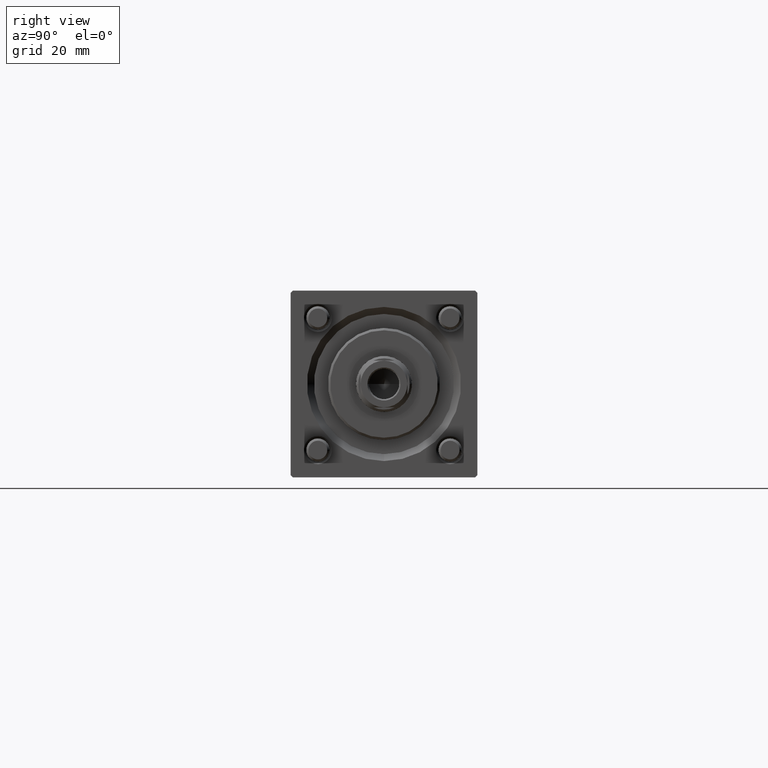
[diagram: clean part render]
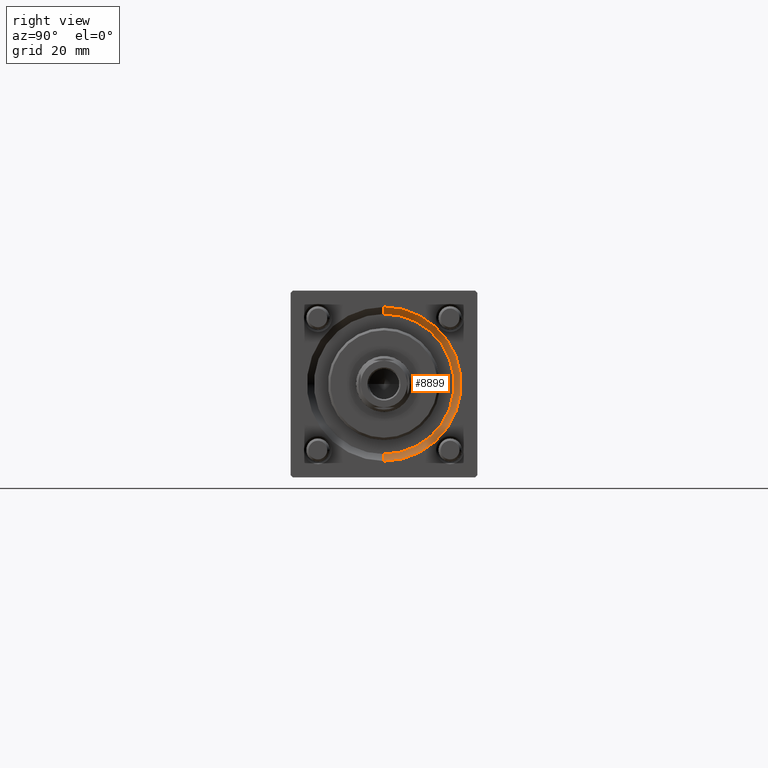
[diagram: same view with one face highlighted and labeled with its STEP entity id]
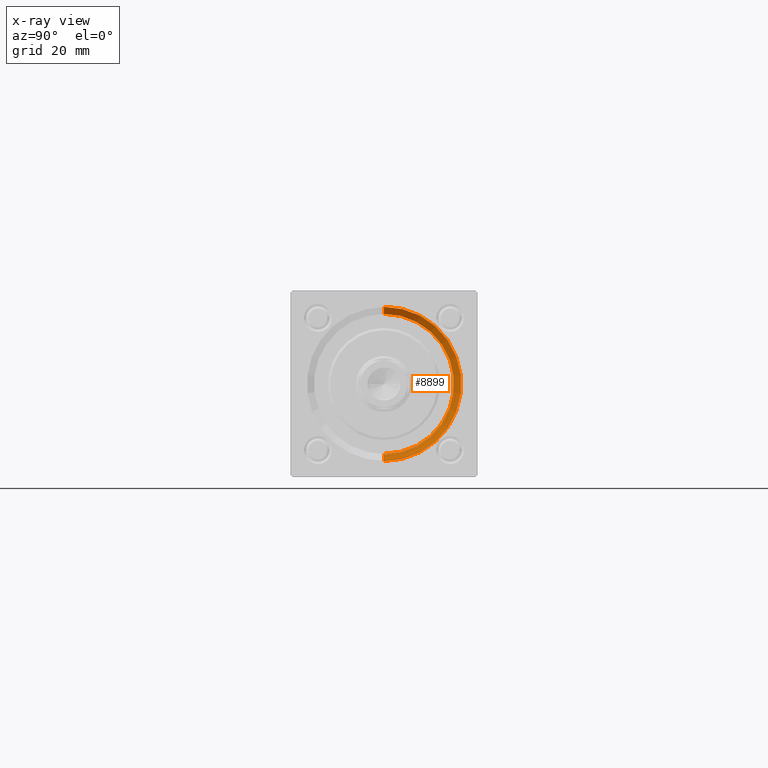
[diagram: x-ray of the same camera — body ghosted, the highlighted face saturated]
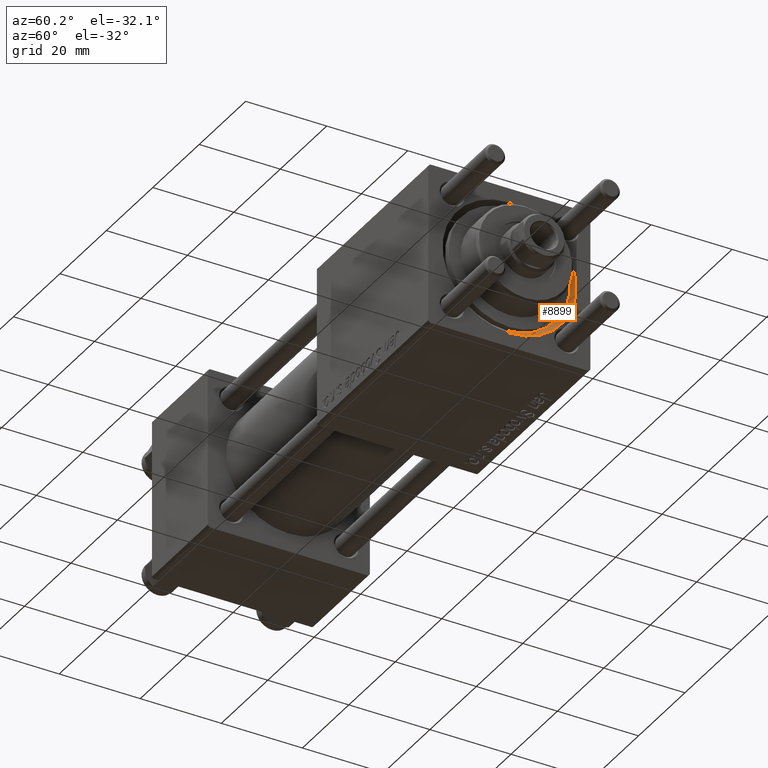
[diagram: same view with one face highlighted and labeled with its STEP entity id]
A machine part, right view. The second image highlights one B-rep face of the part: STEP entity #8899.
The next image is the same camera in x-ray: the body ghosted, the highlighted face saturated — about 0% of this face is hidden behind the body in this view.
A second angle (auxiliary view) of the same face is appended — the face is thin or edge-on in the first view.
In plain terms, the highlighted conical surface has half-angle 45 deg.
Its self-contained STEP definition (entity closure, byte-faithful):
#1649 = LINE ( 'NONE', #27236, #18999 ) ;
#2224 = ORIENTED_EDGE ( 'NONE', *, *, #39945, .F. ) ;
#4305 = ORIENTED_EDGE ( 'NONE', *, *, #38924, .T. ) ;
#5156 = AXIS2_PLACEMENT_3D ( 'NONE', #53191, #44582, #13909 ) ;
#6523 = VERTEX_POINT ( 'NONE', #56428 ) ;
#8899 = ADVANCED_FACE ( 'NONE', ( #55938 ), #10190, .F. ) ;
#10190 = CONICAL_SURFACE ( 'NONE', #43187, 15.00000000000000000, 0.7853981633974482790 ) ;
#11997 = DIRECTION ( 'NONE',  ( 0.000000000000000000, 0.000000000000000000, 1.000000000000000000 ) ) ;
#13749 = CARTESIAN_POINT ( 'NONE',  ( 119.0000000000000142, 0.000000000000000000, -16.50000000000001421 ) ) ;
#13909 = DIRECTION ( 'NONE',  ( 0.000000000000000000, 0.000000000000000000, 1.000000000000000000 ) ) ;
#15449 = DIRECTION ( 'NONE',  ( 1.000000000000000000, 0.000000000000000000, 0.000000000000000000 ) ) ;
#15726 = CARTESIAN_POINT ( 'NONE',  ( 117.5000000000000000, 0.000000000000000000, 0.000000000000000000 ) ) ;
#16059 = DIRECTION ( 'NONE',  ( 0.000000000000000000, 0.000000000000000000, -1.000000000000000000 ) ) ;
#18560 = VERTEX_POINT ( 'NONE', #40614 ) ;
#18612 = DIRECTION ( 'NONE',  ( 0.7071067811865474617, 0.000000000000000000, -0.7071067811865474617 ) ) ;
#18999 = VECTOR ( 'NONE', #18612, 1000.000000000000114 ) ;
#19041 = AXIS2_PLACEMENT_3D ( 'NONE', #15726, #15449, #11997 ) ;
#25469 = LINE ( 'NONE', #30884, #56777 ) ;
#26026 = DIRECTION ( 'NONE',  ( 0.7071067811865474617, 8.659560562354932858E-17, 0.7071067811865474617 ) ) ;
#26377 = CIRCLE ( 'NONE', #19041, 15.00000000000000000 ) ;
#27236 = CARTESIAN_POINT ( 'NONE',  ( 117.5000000000000000, 0.000000000000000000, -15.00000000000000000 ) ) ;
#30271 = VERTEX_POINT ( 'NONE', #47061 ) ;
#30884 = CARTESIAN_POINT ( 'NONE',  ( 117.5000000000000000, 1.836970198721029589E-15, 15.00000000000000000 ) ) ;
#35852 = EDGE_CURVE ( 'NONE', #30271, #49490, #41796, .T. ) ;
#37867 = CARTESIAN_POINT ( 'NONE',  ( 117.5000000000000000, 0.000000000000000000, 0.000000000000000000 ) ) ;
#38924 = EDGE_CURVE ( 'NONE', #18560, #49490, #1649, .T. ) ;
#39945 = EDGE_CURVE ( 'NONE', #18560, #6523, #26377, .T. ) ;
#40614 = CARTESIAN_POINT ( 'NONE',  ( 117.5000000000000000, 0.000000000000000000, -15.00000000000000000 ) ) ;
#41796 = CIRCLE ( 'NONE', #5156, 16.50000000000001421 ) ;
#43187 = AXIS2_PLACEMENT_3D ( 'NONE', #37867, #55363, #16059 ) ;
#44582 = DIRECTION ( 'NONE',  ( -1.000000000000000000, -0.000000000000000000, -0.000000000000000000 ) ) ;
#46962 = EDGE_LOOP ( 'NONE', ( #56294, #2224, #4305, #53105 ) ) ;
#47061 = CARTESIAN_POINT ( 'NONE',  ( 119.0000000000000142, 2.020667218593134678E-15, 16.50000000000001421 ) ) ;
#47927 = EDGE_CURVE ( 'NONE', #6523, #30271, #25469, .T. ) ;
#49490 = VERTEX_POINT ( 'NONE', #13749 ) ;
#53105 = ORIENTED_EDGE ( 'NONE', *, *, #35852, .F. ) ;
#53191 = CARTESIAN_POINT ( 'NONE',  ( 119.0000000000000142, 0.000000000000000000, 0.000000000000000000 ) ) ;
#55363 = DIRECTION ( 'NONE',  ( 1.000000000000000000, 0.000000000000000000, 0.000000000000000000 ) ) ;
#55938 = FACE_OUTER_BOUND ( 'NONE', #46962, .T. ) ;
#56294 = ORIENTED_EDGE ( 'NONE', *, *, #47927, .F. ) ;
#56428 = CARTESIAN_POINT ( 'NONE',  ( 117.5000000000000000, 1.836970198721029589E-15, 15.00000000000000000 ) ) ;
#56777 = VECTOR ( 'NONE', #26026, 1000.000000000000114 ) ;